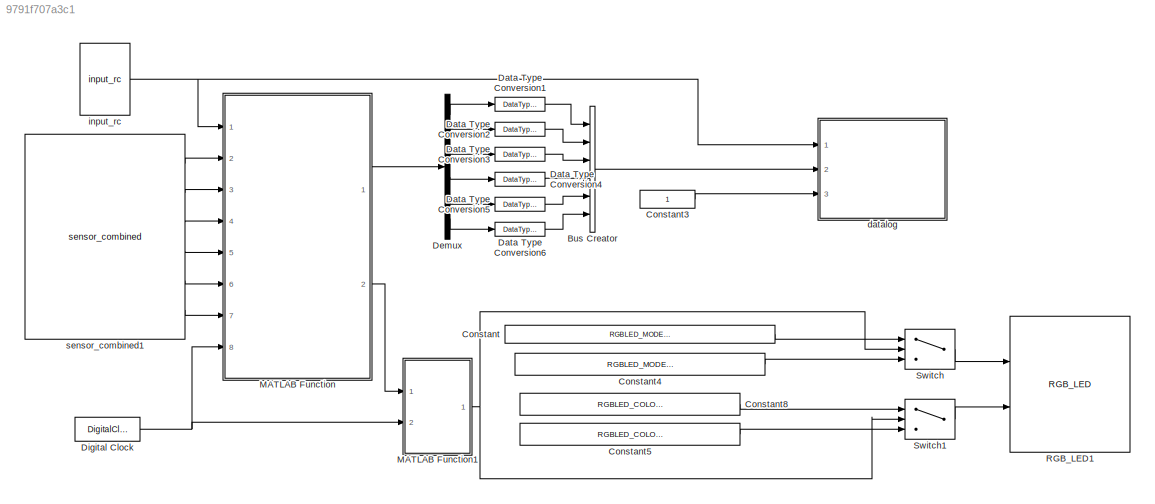
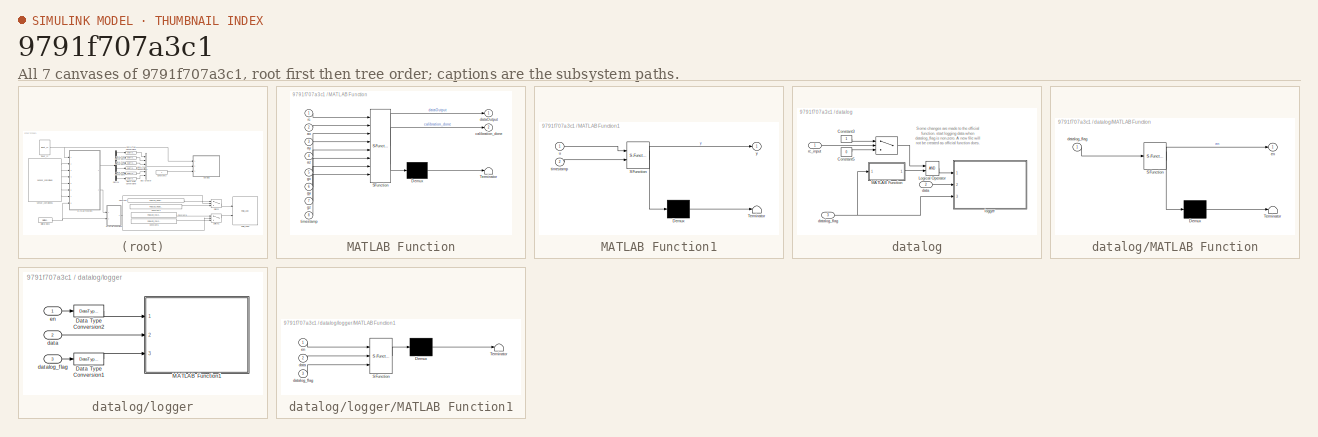
[diagram: thumbnail index - all 7 canvases of the model, root first then tree order]
MODEL slx_9791f707a3c1
KIND model
CONFIG AbsTol = auto
CONFIG EnableMultiTasking = off
CONFIG FixedStep = auto
CONFIG MaxStep = auto
CONFIG MinStep = auto
CONFIG RelTol = 1e-3
CONFIG SampleTimeConstraint = Unconstrained
CONFIG Solver = FixedStepDiscrete
CONFIG SolverName = FixedStepDiscrete
CONFIG StartTime = 0.0
CONFIG StopTime = 10.0
BLOCK [BusCreator] Bus Creator
  DisplayOption = bar
  InheritFromInputs = on
  Inputs = 6
  Ports = [6, 1]
BLOCK [Constant] Constant
  OutDataTypeStr = Enum: RGBLED_MODE_ENUM
  Value = RGBLED_MODE_ENUM.SL_MODE_BLINK_FAST
BLOCK [Constant] Constant3
  OutDataTypeStr = double
BLOCK [Constant] Constant4
  OutDataTypeStr = Enum: RGBLED_MODE_ENUM
  Value = RGBLED_MODE_ENUM.SL_MODE_BLINK_NORMAL
BLOCK [Constant] Constant5
  OutDataTypeStr = Enum: RGBLED_COLOR_ENUM
  Value = RGBLED_COLOR_ENUM.SL_COLOR_GREEN
BLOCK [Constant] Constant8
  OutDataTypeStr = Enum: RGBLED_COLOR_ENUM
  Value = RGBLED_COLOR_ENUM.SL_COLOR_RED
BLOCK [DataTypeConversion] Data Type Conversion1
  OutDataTypeStr = single
  RndMeth = Floor
  SaturateOnIntegerOverflow = off
BLOCK [DataTypeConversion] Data Type Conversion2
  OutDataTypeStr = single
  RndMeth = Floor
  SaturateOnIntegerOverflow = off
BLOCK [DataTypeConversion] Data Type Conversion3
  OutDataTypeStr = single
  RndMeth = Floor
  SaturateOnIntegerOverflow = off
BLOCK [DataTypeConversion] Data Type Conversion4
  OutDataTypeStr = single
  RndMeth = Floor
  SaturateOnIntegerOverflow = off
BLOCK [DataTypeConversion] Data Type Conversion5
  OutDataTypeStr = single
  RndMeth = Floor
  SaturateOnIntegerOverflow = off
BLOCK [DataTypeConversion] Data Type Conversion6
  OutDataTypeStr = single
  RndMeth = Floor
  SaturateOnIntegerOverflow = off
BLOCK [Demux] Demux
  DisplayOption = bar
  Outputs = 6
  Ports = [1, 6]
BLOCK [DigitalClock] Digital Clock
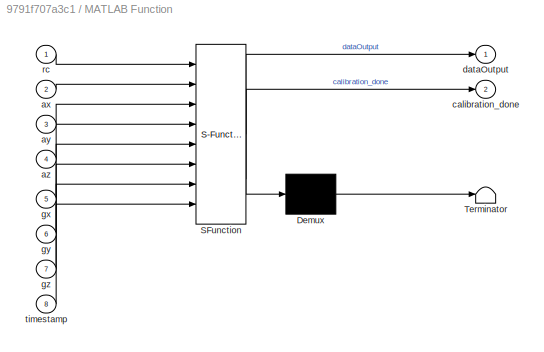
BLOCK [SubSystem] MATLAB Function
  ErrorFcn = Stateflow.Translate.translate
  PermitHierarchicalResolution = ExplicitOnly
  Ports = [8, 2]
  RequestExecContextInheritance = off
  SFBlockType = MATLAB Function
  TreatAsAtomicUnit = on
  Variant = off
BLOCK [Demux] MATLAB Function/ Demux 
  Outputs = 1
  Ports = [1, 1]
BLOCK [S-Function] MATLAB Function/ SFunction 
  EnableBusSupport = on
  FunctionName = sf_sfun
  PortCounts = [8 3]
  Ports = [8, 3]
  SFcnIsStateOwnerBlock = off
  SFunctionDeploymentMode = off
  Tag = Stateflow S-Function acquire_data_ag 2
BLOCK [Terminator] MATLAB Function/ Terminator 
BLOCK [Inport] MATLAB Function/ax
  IconDisplay = Port number
  Port = 2
BLOCK [Inport] MATLAB Function/ay
  IconDisplay = Port number
  Port = 3
BLOCK [Inport] MATLAB Function/az
  IconDisplay = Port number
  Port = 4
BLOCK [Outport] MATLAB Function/calibration_done
  IconDisplay = Port number
  Port = 2
BLOCK [Outport] MATLAB Function/dataOutput
  IconDisplay = Port number
BLOCK [Inport] MATLAB Function/gx
  IconDisplay = Port number
  Port = 5
BLOCK [Inport] MATLAB Function/gy
  IconDisplay = Port number
  Port = 6
BLOCK [Inport] MATLAB Function/gz
  IconDisplay = Port number
  Port = 7
BLOCK [Inport] MATLAB Function/rc
  IconDisplay = Port number
BLOCK [Inport] MATLAB Function/timestamp
  IconDisplay = Port number
  Port = 8
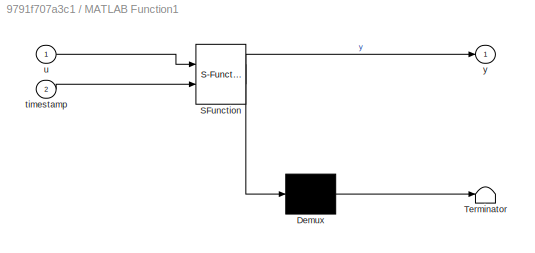
BLOCK [SubSystem] MATLAB Function1
  ErrorFcn = Stateflow.Translate.translate
  PermitHierarchicalResolution = ExplicitOnly
  Ports = [2, 1]
  RequestExecContextInheritance = off
  SFBlockType = MATLAB Function
  TreatAsAtomicUnit = on
  Variant = off
BLOCK [Demux] MATLAB Function1/ Demux 
  Outputs = 1
  Ports = [1, 1]
BLOCK [S-Function] MATLAB Function1/ SFunction 
  EnableBusSupport = on
  FunctionName = sf_sfun
  PortCounts = [2 2]
  Ports = [2, 2]
  SFcnIsStateOwnerBlock = off
  SFunctionDeploymentMode = off
  Tag = Stateflow S-Function acquire_data_ag 4
BLOCK [Terminator] MATLAB Function1/ Terminator 
BLOCK [Inport] MATLAB Function1/timestamp
  IconDisplay = Port number
  Port = 2
BLOCK [Inport] MATLAB Function1/u
  IconDisplay = Port number
BLOCK [Outport] MATLAB Function1/y
  IconDisplay = Port number
BLOCK [Reference] RGB_LED1  REF=pixhawk_slib_sensors_actuators/RGB_LED
  Description = This block gives the user control over various lighting modes of the RGB LED available on the PX4 hardware. \nThis block accepts 2 inputs: Mode and Color.  These are enumeration data types.  You can find out what values are valid in the MATLAB command window by typing: \nEnumeration members for class 'RGBLED_COLOR_ENUM':\n    SL_COLOR_OFF\n    SL_COLOR_RED\n    SL_COLOR_GREEN\n    SL_COLOR_BLUE\n    SL_C...<+378ch>
  Ports = [2]
  SourceBlock = pixhawk_slib_sensors_actuators/RGB_LED
  SourceProductName = Pixhawk Target Blocks
  SourceType = PX4_RGBLED - controls the mode and color of the Pixhawk RGB LED
BLOCK [Switch] Switch
  InputSameDT = off
  SaturateOnIntegerOverflow = off
  Threshold = 2
BLOCK [Switch] Switch1
  Criteria = u2 ~= 0
  InputSameDT = off
  SaturateOnIntegerOverflow = off
  Threshold = 1500
BLOCK [SubSystem] datalog
  Ports = [3]
  RequestExecContextInheritance = off
  Variant = off
BLOCK [Switch] datalog/ 
  Criteria = u2 > Threshold
  InputSameDT = off
  SaturateOnIntegerOverflow = off
  Threshold = 1600
BLOCK [Constant] datalog/Constant3
BLOCK [Constant] datalog/Constant5
  Value = 0
BLOCK [Logic] datalog/Logical Operator
  AllPortsSameDT = off
  OutDataTypeStr = boolean
  Ports = [2, 1]
BLOCK [SubSystem] datalog/MATLAB Function
  ErrorFcn = Stateflow.Translate.translate
  PermitHierarchicalResolution = ExplicitOnly
  Ports = [1, 1]
  RequestExecContextInheritance = off
  SFBlockType = MATLAB Function
  TreatAsAtomicUnit = on
  Variant = off
BLOCK [Demux] datalog/MATLAB Function/ Demux 
  Outputs = 1
  Ports = [1, 1]
BLOCK [S-Function] datalog/MATLAB Function/ SFunction 
  EnableBusSupport = on
  FunctionName = sf_sfun
  PortCounts = [1 2]
  Ports = [1, 2]
  SFcnIsStateOwnerBlock = off
  SFunctionDeploymentMode = off
  Tag = Stateflow S-Function acquire_data_ag 3
BLOCK [Terminator] datalog/MATLAB Function/ Terminator 
BLOCK [Inport] datalog/MATLAB Function/datalog_flag
  IconDisplay = Port number
BLOCK [Outport] datalog/MATLAB Function/en
  IconDisplay = Port number
BLOCK [Inport] datalog/data
  IconDisplay = Port number
  Port = 2
BLOCK [Inport] datalog/datalog_flag
  IconDisplay = Port number
  Port = 3
BLOCK [SubSystem] datalog/logger
  Ports = [3]
  RequestExecContextInheritance = off
  Variant = off
BLOCK [DataTypeConversion] datalog/logger/Data Type Conversion1
  OutDataTypeStr = boolean
  RndMeth = Floor
  SaturateOnIntegerOverflow = off
BLOCK [DataTypeConversion] datalog/logger/Data Type Conversion2
  OutDataTypeStr = boolean
  RndMeth = Floor
  SaturateOnIntegerOverflow = off
BLOCK [SubSystem] datalog/logger/MATLAB Function1
  ErrorFcn = Stateflow.Translate.translate
  PermitHierarchicalResolution = ExplicitOnly
  Ports = [3]
  RequestExecContextInheritance = off
  SFBlockType = MATLAB Function
  TreatAsAtomicUnit = on
  Variant = off
BLOCK [Demux] datalog/logger/MATLAB Function1/ Demux 
  Outputs = 1
  Ports = [1, 1]
BLOCK [S-Function] datalog/logger/MATLAB Function1/ SFunction 
  EnableBusSupport = on
  FunctionName = sf_sfun
  Parameters = cacheflag,logname,numRecs
  PortCounts = [3 1]
  Ports = [3, 1]
  SFcnIsStateOwnerBlock = off
  SFunctionDeploymentMode = off
  Tag = Stateflow S-Function acquire_data_ag 1
BLOCK [Terminator] datalog/logger/MATLAB Function1/ Terminator 
BLOCK [Inport] datalog/logger/MATLAB Function1/data
  IconDisplay = Port number
  Port = 2
BLOCK [Inport] datalog/logger/MATLAB Function1/datalog_flag
  IconDisplay = Port number
  Port = 3
BLOCK [Inport] datalog/logger/MATLAB Function1/en
  IconDisplay = Port number
BLOCK [Inport] datalog/logger/data
  IconDisplay = Port number
  Port = 2
BLOCK [Inport] datalog/logger/datalog_flag
  IconDisplay = Port number
  Port = 3
BLOCK [Inport] datalog/logger/en
  IconDisplay = Port number
BLOCK [Inport] datalog/rc_input
  IconDisplay = Port number
BLOCK [Reference] input_rc  REF=pixhawk_slib_sensors_actuators/input_rc
  Ports = [0, 1]
  SourceBlock = pixhawk_slib_sensors_actuators/input_rc
  SourceProductName = Pixhawk Target Blocks
  SourceType = PX4_Input_RC
BLOCK [Reference] sensor_combined1  REF=pixhawk_slib_sensors_actuators/sensor_combined
  Description = Sensor Combined Block\n\nThis block enables access to the various sensors available on the px4fmu-v2 hardware.  \nThe user can use these signals in the Simulink control model.  \nThe sample time needs to be provided in the mask dialog.  \nOptional output ports can also be selected.  \nRefer to the sample model: px4demo_attitude_control.slx\n\nSignal definitions: \nMagnetometer (x,y,z) - single values – Mag...<+514ch>
  Ports = [0, 6]
  SourceBlock = pixhawk_slib_sensors_actuators/sensor_combined
  SourceProductName = Pixhawk Target Blocks
  SourceType = PX4_Sensor_Combined
ANNOTATION datalog: Some changes are made to the official function. start logging data when datalog_flag is non-zero. A new file will not be created as official function does.
LINE Bus Creator:1 -> datalog:2
LINE Constant3:1 -> datalog:3
LINE Constant4:1 -> Switch:3
LINE Constant5:1 -> Switch1:3
LINE Constant8:1 -> Switch1:1
LINE Constant:1 -> Switch:1
LINE Data Type Conversion1:1 -> Bus Creator:1
LINE Data Type Conversion2:1 -> Bus Creator:2
LINE Data Type Conversion3:1 -> Bus Creator:3
LINE Data Type Conversion4:1 -> Bus Creator:4
LINE Data Type Conversion5:1 -> Bus Creator:5
LINE Data Type Conversion6:1 -> Bus Creator:6
LINE Demux:1 -> Data Type Conversion1:1
LINE Demux:2 -> Data Type Conversion2:1
LINE Demux:3 -> Data Type Conversion3:1
LINE Demux:4 -> Data Type Conversion4:1
LINE Demux:5 -> Data Type Conversion5:1
LINE Demux:6 -> Data Type Conversion6:1
NET Digital Clock:1 -> MATLAB Function1:2, MATLAB Function:8
NET MATLAB Function1:1 -> Switch1:2, Switch:2
LINE MATLAB Function:1 -> Demux:1
LINE MATLAB Function:2 -> MATLAB Function1:1
LINE Switch1:1 -> RGB_LED1:2
LINE Switch:1 -> RGB_LED1:1
LINE datalog/ :1 -> datalog/Logical Operator:1
LINE datalog/Constant3:1 -> datalog/ :1
LINE datalog/Constant5:1 -> datalog/ :3
LINE datalog/Logical Operator:1 -> datalog/logger:1
LINE datalog/MATLAB Function:1 -> datalog/Logical Operator:2
LINE datalog/data:1 -> datalog/logger:2
NET datalog/datalog_flag:1 -> datalog/MATLAB Function:1, datalog/logger:3
LINE datalog/logger/Data Type Conversion1:1 -> datalog/logger/MATLAB Function1:3
LINE datalog/logger/Data Type Conversion2:1 -> datalog/logger/MATLAB Function1:1
LINE datalog/logger/data:1 -> datalog/logger/MATLAB Function1:2
LINE datalog/logger/datalog_flag:1 -> datalog/logger/Data Type Conversion1:1
LINE datalog/logger/en:1 -> datalog/logger/Data Type Conversion2:1
LINE datalog/rc_input:1 -> datalog/ :2
NET input_rc:1 -> MATLAB Function:1, datalog:1
LINE sensor_combined1:1 -> MATLAB Function:2
LINE sensor_combined1:2 -> MATLAB Function:3
LINE sensor_combined1:3 -> MATLAB Function:4
LINE sensor_combined1:4 -> MATLAB Function:5
LINE sensor_combined1:5 -> MATLAB Function:6
LINE sensor_combined1:6 -> MATLAB Function:7
note: NET lines group one-source signal fan-out (src -> all destinations, sorted); 1:1 wires keep LINE
CHART datalog/logger/MATLAB Function1 states=1 transitions=1
  STATE_LABEL 'eML_blk_kernel()'
  STATE_LABEL 'SCRIPT:\n%% Binary Logger\n% Note: All data needs to be of the same type (e.g. double)\n% Header information format:\n%           String "MWLOGV##"\n%           Time/Date 4 bytes (time())\n%           Number of Signals per record Logged 1 byte (256 max)\n%           Data Type of Signals Logged  1 byte (1-10)\n%           Number of bytes per record 2 bytes (65535 max)\n% This does NOT include the number of ...<+3608ch>'
CHART MATLAB Function states=1 transitions=1
  STATE_LABEL 'eML_blk_kernel()'
  STATE_LABEL 'SCRIPT:\nfunction [dataOutput, calibration_done]  = fcn(rc, ax, ay, az, gx, gy, gz, timestamp)\n%Function description:\n%  Collect data for accelerometer calibration. The collected data includes\n%  the feature points and all accelerometer data after the data logging is\n%  enabled. The principle of selecting feature points is that the variance\n%  of consecutive _onceSample_ points is smaller than _std...<+3608ch>'
CHART datalog/MATLAB Function states=1 transitions=1
  STATE_LABEL 'eML_blk_kernel()'
  STATE_LABEL 'SCRIPT:\nfunction en = fcn(datalog_flag)\n\npersistent count;\nif isempty(count)\n    count=0;\nend\n\nif datalog_flag\n    count=count+1;\nend\nif count > 60000\n    en = false;\n    count = 0;\nelse\n    en = true;\nend\n\n'
CHART MATLAB Function1 states=1 transitions=1
  STATE_LABEL 'eML_blk_kernel()'
  STATE_LABEL 'SCRIPT:\nfunction y = fcn(u, timestamp)\n %Function description:\n%  Control LED lights to indicate whether data collection is complete.\n%Input:\n%  u: Whether valid accelerometer data is collected. u = 0, indicating that it has not been acquired; u = 1, indicating that valid data has been collected.\n%  timestamp: uint:s.\n%Output:\n%  y: No feature point is collected, y = 0; one feature point is collec...<+548ch>'
